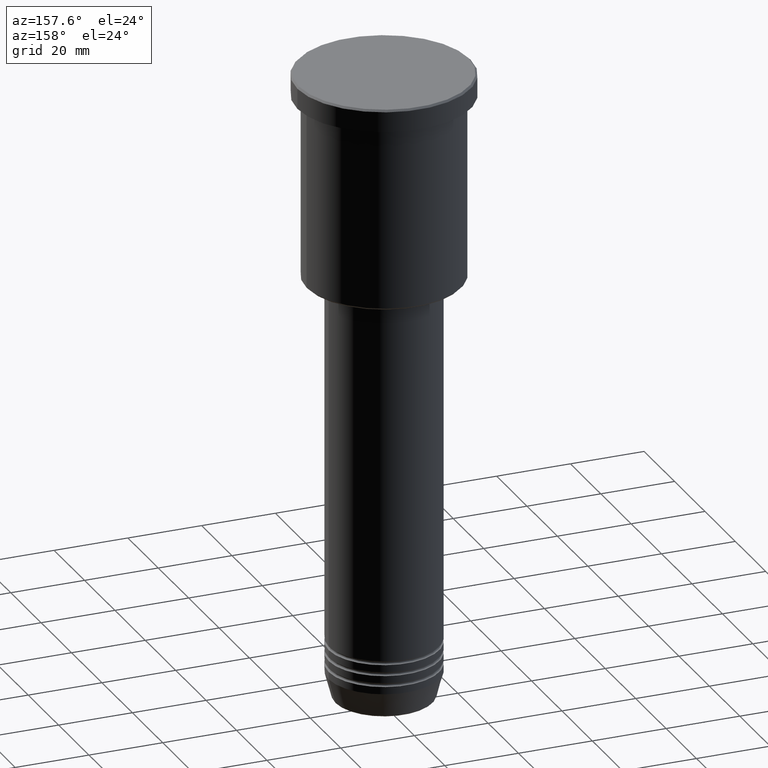
[diagram: clean part render]
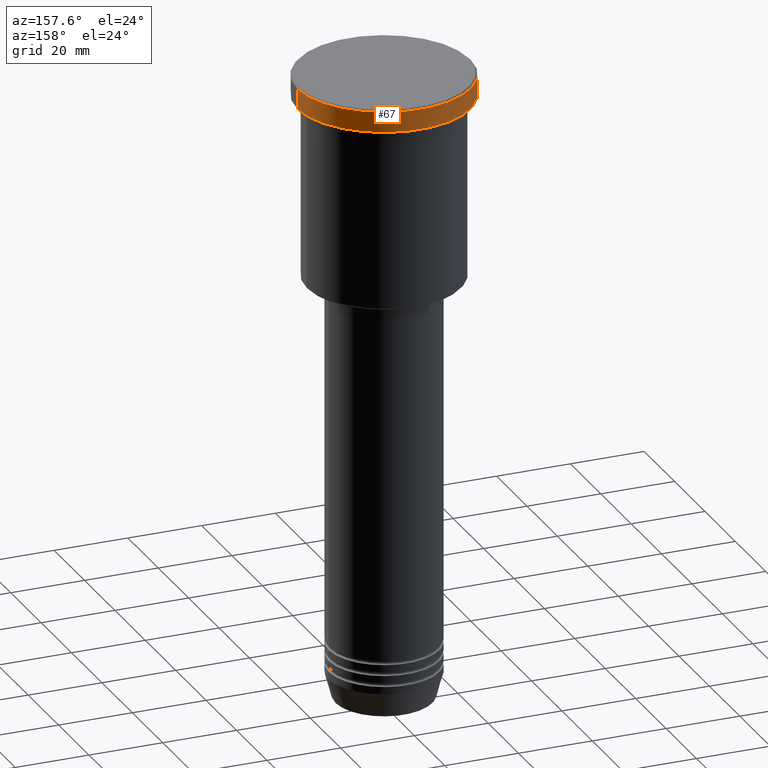
[diagram: same view with one face highlighted and labeled with its STEP entity id]
A machine part, auxiliary view. The second image highlights one B-rep face of the part: STEP entity #67.
In plain terms, the highlighted cylindrical surface (partial cylindrical patch) has radius 23.5 mm, axis along (-0, -0, 1).
Its self-contained STEP definition (entity closure, byte-faithful):
#1 = EDGE_LOOP ( 'NONE', ( #923, #400, #907, #356 ) ) ;
#67 = ADVANCED_FACE ( 'NONE', ( #881 ), #505, .T. ) ;
#89 = DIRECTION ( 'NONE',  ( 0.000000000000000000, 0.000000000000000000, -1.000000000000000000 ) ) ;
#139 = DIRECTION ( 'NONE',  ( 1.000000000000000000, 0.000000000000000000, 0.000000000000000000 ) ) ;
#142 = CIRCLE ( 'NONE', #563, 23.50000000000000000 ) ;
#151 = VERTEX_POINT ( 'NONE', #411 ) ;
#178 = VECTOR ( 'NONE', #896, 1000.000000000000000 ) ;
#195 = CARTESIAN_POINT ( 'NONE',  ( -23.50000000000000000, 2.877919977996280320E-15, 0.000000000000000000 ) ) ;
#225 = DIRECTION ( 'NONE',  ( -0.000000000000000000, -0.000000000000000000, 1.000000000000000000 ) ) ;
#236 = CIRCLE ( 'NONE', #698, 23.50000000000000000 ) ;
#318 = EDGE_CURVE ( 'NONE', #502, #748, #900, .T. ) ;
#344 = EDGE_CURVE ( 'NONE', #151, #748, #142, .T. ) ;
#356 = ORIENTED_EDGE ( 'NONE', *, *, #318, .F. ) ;
#375 = CARTESIAN_POINT ( 'NONE',  ( 23.50000000000000000, 0.000000000000000000, -0.4999999999999726885 ) ) ;
#382 = DIRECTION ( 'NONE',  ( -0.000000000000000000, -0.000000000000000000, 1.000000000000000000 ) ) ;
#400 = ORIENTED_EDGE ( 'NONE', *, *, #432, .T. ) ;
#411 = CARTESIAN_POINT ( 'NONE',  ( -23.50000000000000000, 2.877919977996280320E-15, -0.4999999999999726885 ) ) ;
#426 = CARTESIAN_POINT ( 'NONE',  ( 0.000000000000000000, 0.000000000000000000, 0.000000000000000000 ) ) ;
#427 = AXIS2_PLACEMENT_3D ( 'NONE', #426, #225, #139 ) ;
#432 = EDGE_CURVE ( 'NONE', #867, #151, #738, .T. ) ;
#455 = DIRECTION ( 'NONE',  ( 1.000000000000000000, 0.000000000000000000, 0.000000000000000000 ) ) ;
#475 = DIRECTION ( 'NONE',  ( -0.000000000000000000, -0.000000000000000000, 1.000000000000000000 ) ) ;
#502 = VERTEX_POINT ( 'NONE', #1026 ) ;
#505 = CYLINDRICAL_SURFACE ( 'NONE', #427, 23.50000000000000000 ) ;
#563 = AXIS2_PLACEMENT_3D ( 'NONE', #714, #89, #455 ) ;
#698 = AXIS2_PLACEMENT_3D ( 'NONE', #1124, #475, #755 ) ;
#714 = CARTESIAN_POINT ( 'NONE',  ( 0.000000000000000000, 0.000000000000000000, -0.4999999999999726885 ) ) ;
#738 = LINE ( 'NONE', #195, #851 ) ;
#748 = VERTEX_POINT ( 'NONE', #375 ) ;
#755 = DIRECTION ( 'NONE',  ( 1.000000000000000000, 0.000000000000000000, 0.000000000000000000 ) ) ;
#818 = CARTESIAN_POINT ( 'NONE',  ( 23.50000000000000000, 0.000000000000000000, 0.000000000000000000 ) ) ;
#851 = VECTOR ( 'NONE', #382, 1000.000000000000000 ) ;
#861 = EDGE_CURVE ( 'NONE', #502, #867, #236, .T. ) ;
#867 = VERTEX_POINT ( 'NONE', #936 ) ;
#881 = FACE_OUTER_BOUND ( 'NONE', #1, .T. ) ;
#896 = DIRECTION ( 'NONE',  ( -0.000000000000000000, -0.000000000000000000, 1.000000000000000000 ) ) ;
#900 = LINE ( 'NONE', #818, #178 ) ;
#907 = ORIENTED_EDGE ( 'NONE', *, *, #344, .T. ) ;
#923 = ORIENTED_EDGE ( 'NONE', *, *, #861, .T. ) ;
#936 = CARTESIAN_POINT ( 'NONE',  ( -23.50000000000000000, 2.877919977996280320E-15, -5.999999999999994671 ) ) ;
#1026 = CARTESIAN_POINT ( 'NONE',  ( 23.50000000000000000, 0.000000000000000000, -5.999999999999994671 ) ) ;
#1124 = CARTESIAN_POINT ( 'NONE',  ( 0.000000000000000000, 0.000000000000000000, -5.999999999999994671 ) ) ;